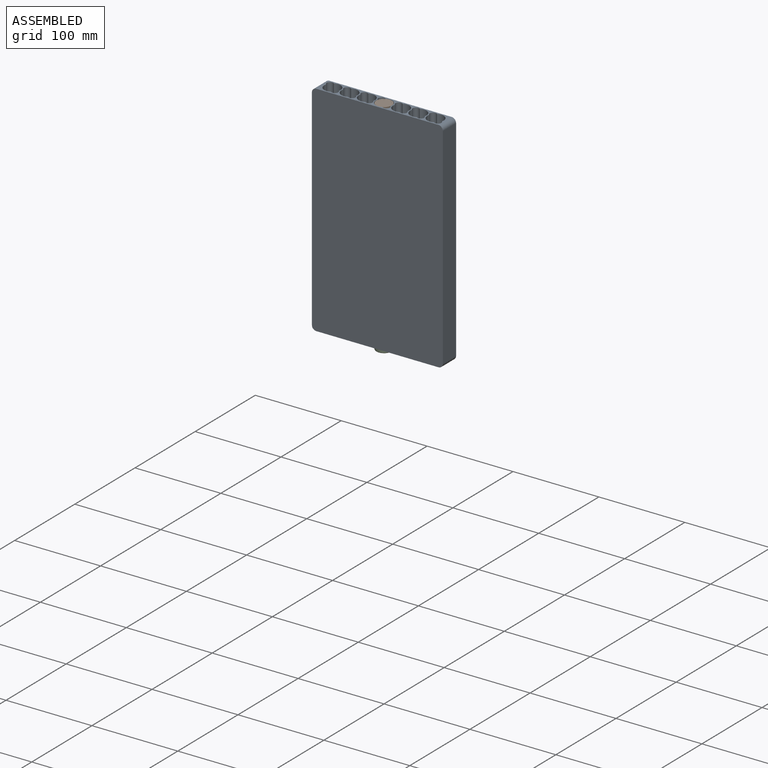
[diagram: assembled view]
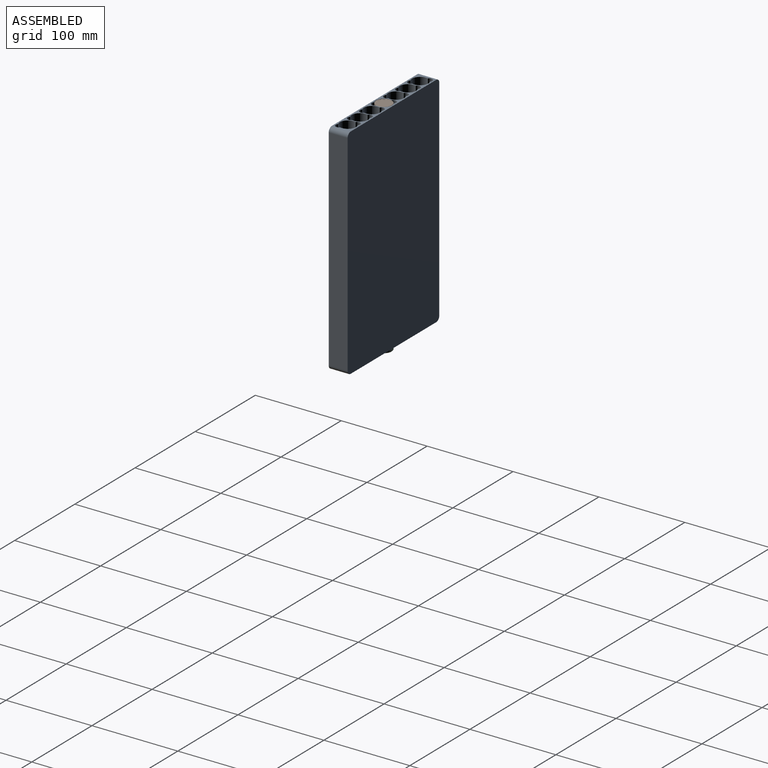
[diagram: assembled view, second angle]
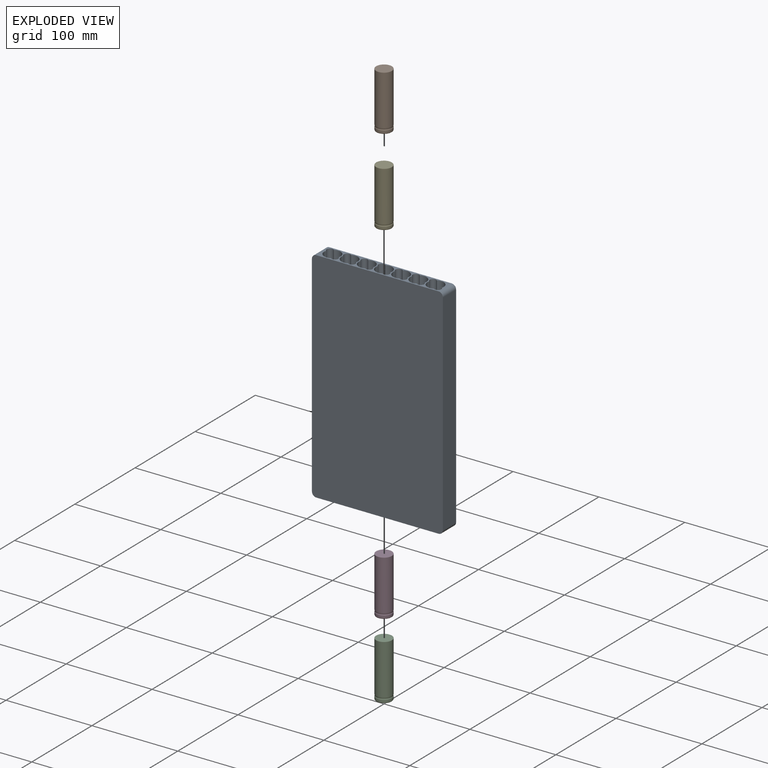
[diagram: exploded view]
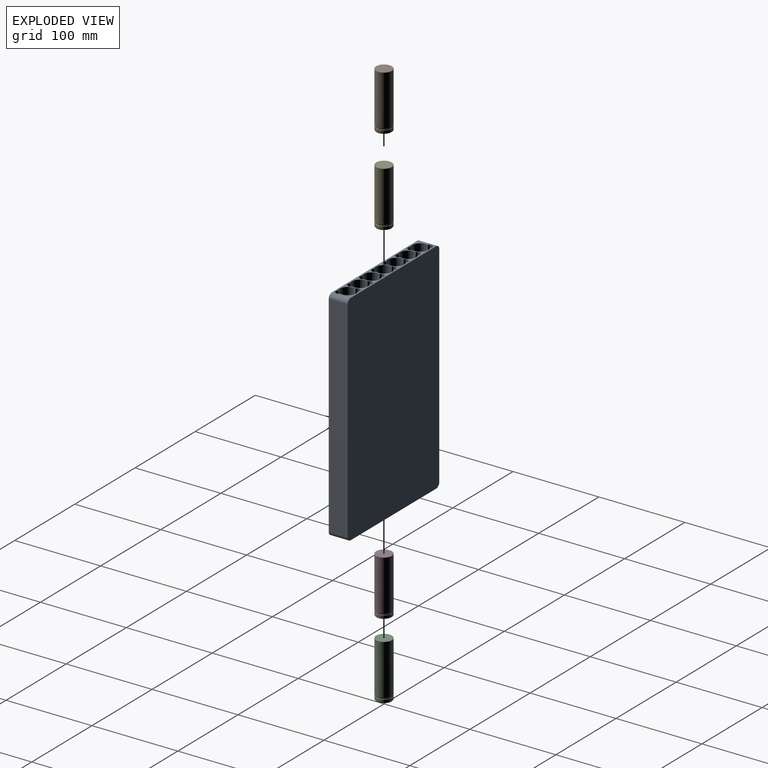
[diagram: exploded view, second angle]
ASSEMBLY  parts=5 mates=4
PART A: 38 faces, bbox 152.4x22x255 mm
  f0: cylinder r=3.81mm len=254.98mm, axis (0,0,-1), area 3162.2mm2, adj f1,f31,f32,f33
  f1: cylinder r=9.5mm len=254.98mm, axis (0,0,-1), area 5614.2mm2, adj f0,f2,f32,f33
  f2: cylinder r=3.81mm len=254.98mm, axis (0,0,-1), area 3162.2mm2, adj f1,f31,f32,f33
  f3: cylinder r=3.81mm len=254.98mm, axis (0,0,-1), area 3162.2mm2, adj f4,f24,f32,f33
  f4: cylinder r=9.5mm len=254.98mm, axis (0,0,-1), area 5614.2mm2, adj f3,f5,f32,f33
  f5: cylinder r=3.81mm len=254.98mm, axis (0,0,-1), area 3162.2mm2, adj f4,f24,f32,f33
  f6: cylinder r=3.81mm len=254.98mm, axis (0,0,-1), area 3162.2mm2, adj f7,f25,f32,f33
  f7: cylinder r=9.5mm len=254.98mm, axis (0,0,-1), area 5614.2mm2, adj f6,f8,f32,f33
  f8: cylinder r=3.81mm len=254.98mm, axis (0,0,-1), area 3162.2mm2, adj f7,f25,f32,f33
  f9: cylinder r=3.81mm len=254.98mm, axis (0,0,-1), area 3162.2mm2, adj f10,f26,f32,f33
  f10: cylinder r=9.5mm len=254.98mm, axis (0,0,-1), area 5614.2mm2, adj f9,f11,f32,f33
  f11: cylinder r=3.81mm len=254.98mm, axis (0,0,-1), area 3162.2mm2, adj f10,f26,f32,f33
  f12: cylinder r=3.81mm len=254.98mm, axis (0,0,-1), area 3162.2mm2, adj f13,f27,f32,f33
  f13: cylinder r=9.5mm len=254.98mm, axis (0,0,-1), area 5614.2mm2, adj f12,f14,f32,f33
  f14: cylinder r=3.81mm len=254.98mm, axis (0,0,-1), area 3162.2mm2, adj f13,f27,f32,f33
  f15: cylinder r=3.81mm len=254.98mm, axis (0,0,-1), area 3162.2mm2, adj f16,f28,f32,f33
  f16: cylinder r=9.5mm len=254.98mm, axis (0,0,-1), area 5614.2mm2, adj f15,f17,f32,f33
  f17: cylinder r=3.81mm len=254.98mm, axis (0,0,-1), area 3162.2mm2, adj f16,f28,f32,f33
  f18: cylinder r=9.5mm len=254.98mm, axis (0,0,-1), area 5614.2mm2, adj f19,f29,f32,f33
  f19: cylinder r=3.81mm len=254.98mm, axis (0,0,-1), area 3162.2mm2, adj f18,f20,f32,f33
  f20: cylinder r=9.5mm len=254.98mm, axis (0,0,-1), area 5614.2mm2, adj f19,f29,f32,f33
  f21: plane 244.82x22mm, normal (1,0,0), area 5386.1mm2, adj f22,f30,f35,f37
  f22: plane 254.98x152.4mm, normal (0,1,0), area 38837.2mm2, adj f21,f23,f32,f33,f34,f35,f36,f37
  f23: plane 244.82x22mm, normal (-1,0,0), area 5386.1mm2, adj f22,f30,f34,f36
  f24: cylinder r=9.5mm len=254.98mm, axis (0,0,-1), area 5614.2mm2, adj f3,f5,f32,f33
  f25: cylinder r=9.5mm len=254.98mm, axis (0,0,-1), area 5614.2mm2, adj f6,f8,f32,f33
  f26: cylinder r=9.5mm len=254.98mm, axis (0,0,-1), area 5614.2mm2, adj f9,f11,f32,f33
  f27: cylinder r=9.5mm len=254.98mm, axis (0,0,-1), area 5614.2mm2, adj f12,f14,f32,f33
  f28: cylinder r=9.5mm len=254.98mm, axis (0,0,-1), area 5614.2mm2, adj f15,f17,f32,f33
  f29: cylinder r=3.81mm len=254.98mm, axis (0,0,-1), area 3162.2mm2, adj f18,f20,f32,f33
  f30: plane 254.98x152.4mm, normal (0,-1,0), area 38837.2mm2, adj f21,f23,f32,f33,f34,f35,f36,f37
  f31: cylinder r=9.5mm len=254.98mm, axis (0,0,-1), area 5614.2mm2, adj f0,f2,f32,f33
  f32: plane 142.24x22mm, normal (0,0,1), area 859.2mm2, adj f0,f1,f2,f3,f4,f5,f6,f7
  f33: plane 142.24x22mm, normal (0,0,-1), area 859.2mm2, adj f0,f1,f2,f3,f4,f5,f6,f7
  f34: cylinder r=5.08mm len=22mm, axis (0,-1,0), area 175.6mm2, adj f22,f23,f30,f33
  f35: cylinder r=5.08mm len=22mm, axis (0,1,0), area 175.6mm2, adj f21,f22,f30,f33
  f36: cylinder r=5.08mm len=22mm, axis (0,1,0), area 175.6mm2, adj f22,f23,f30,f32
  f37: cylinder r=5.08mm len=22mm, axis (0,-1,0), area 175.6mm2, adj f21,f22,f30,f32
PART B: 15 faces, bbox 65x20.4x20.4 mm
  f0: plane 11.5x11.5mm, normal (1,0,0), area 8.8mm2, adj f10,f14
  f1: plane 15.86x15.86mm, normal (1,0,0), area 93.7mm2, adj f2,f10
  f2: torus R=7.93mm, axis (1,0,0), area 109.5mm2, adj f1,f3
  f3: cylinder r=9.2mm len=18.4mm, axis (1,0,0), area 144.5mm2, adj f2,f4
  f4: torus R=8.7mm, axis (-1,0,0), area 15.1mm2, adj f3,f6
  f5: torus R=8.7mm, axis (-1,0,0), area 15.1mm2, adj f6,f9
  f6: torus R=10.87mm, axis (-1,0,0), area 117.8mm2, adj f4,f5
  f7: plane 17.89x17.89mm, normal (-1,0,0), area 74.7mm2, adj f8,f12
  f8: torus R=8.95mm, axis (1,0,0), area 22.8mm2, adj f7,f9
  f9: cylinder r=9.2mm len=58.48mm, axis (1,0,0), area 3380.2mm2, adj f5,f8
  f10: cylinder r=5.75mm len=11.5mm, axis (1,0,0), area 36.7mm2, adj f0,f1
  f11: plane 9.01x9.01mm, normal (1,0,0), area 63.8mm2, adj f14
  f12: cylinder r=7.5mm len=15mm, axis (-1,0,0), area 1.2mm2, adj f7,f13
  f13: plane 15x15mm, normal (-1,0,0), area 176.7mm2, adj f12
  f14: torus R=4.51mm, axis (-1,0,0), area 46.9mm2, adj f0,f11
PART C: same geometry as B
PART D: same geometry as B
PART E: same geometry as B
PLACE A at identity
PLACE B rot(axis=(0,1,0),90deg) t=(0,0,254.98)mm
PLACE C rot(axis=(0,1,0),90deg) t=(0,0,60.39)mm
PLACE D rot(axis=(0,1,0),90deg) t=(0,0,125.01)mm
PLACE E rot(axis=(0,1,0),90deg) t=(0,0,189.98)mm
MATE fastened C.f12 <-> D.f10  axis (0,0,-1) through (0,0,60.13)mm
MATE fastened B.f10 <-> E.f4  axis (0,0,-1) through (0,0,189.98)mm
MATE fastened B.f4 <-> A.f18  axis (0,0,1) through (0,0,254.98)mm
MATE fastened D.f8 <-> E.f10  axis (0,0,1) through (0,0,124.98)mm
